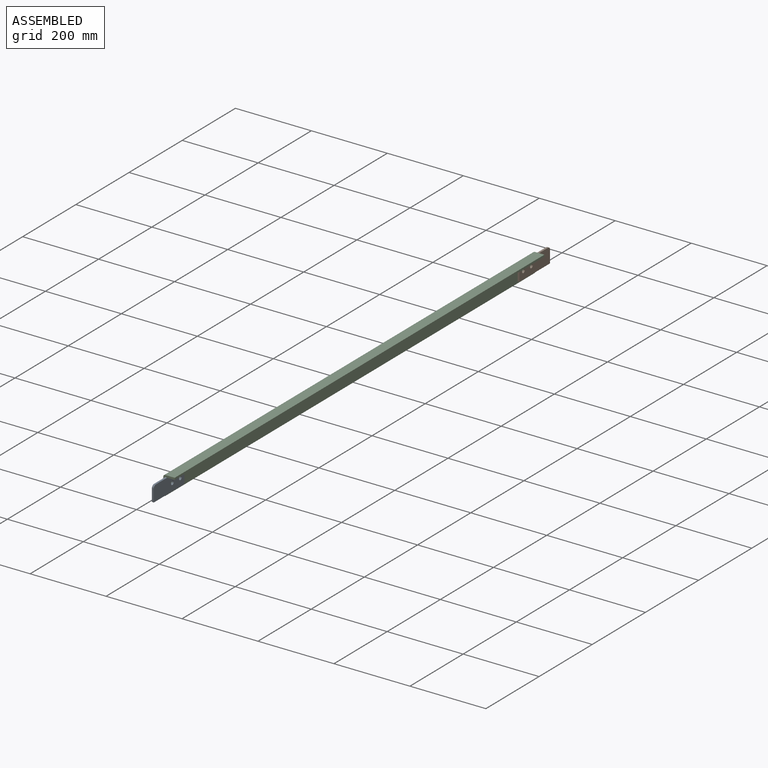
[diagram: assembled view]
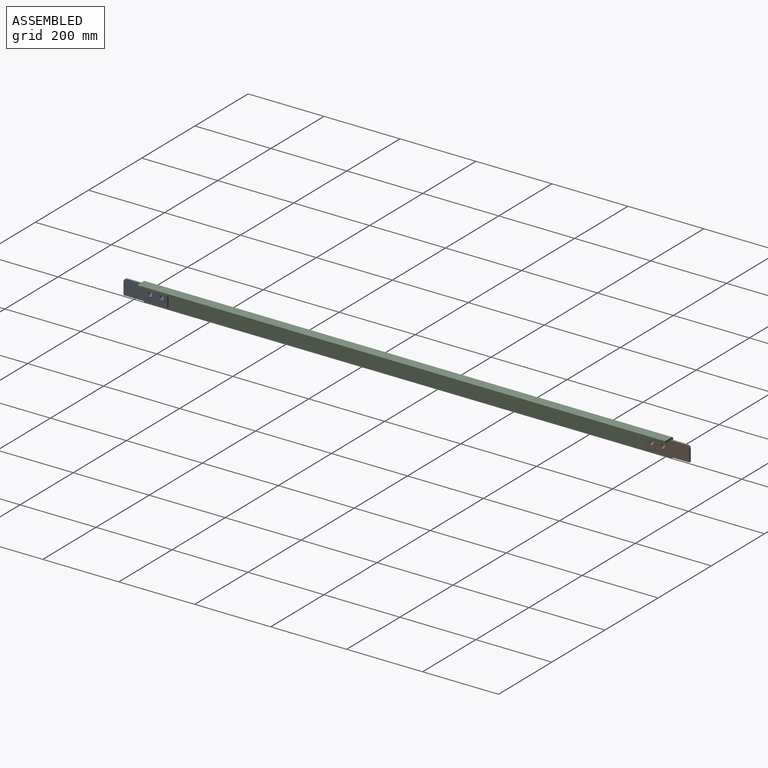
[diagram: assembled view, second angle]
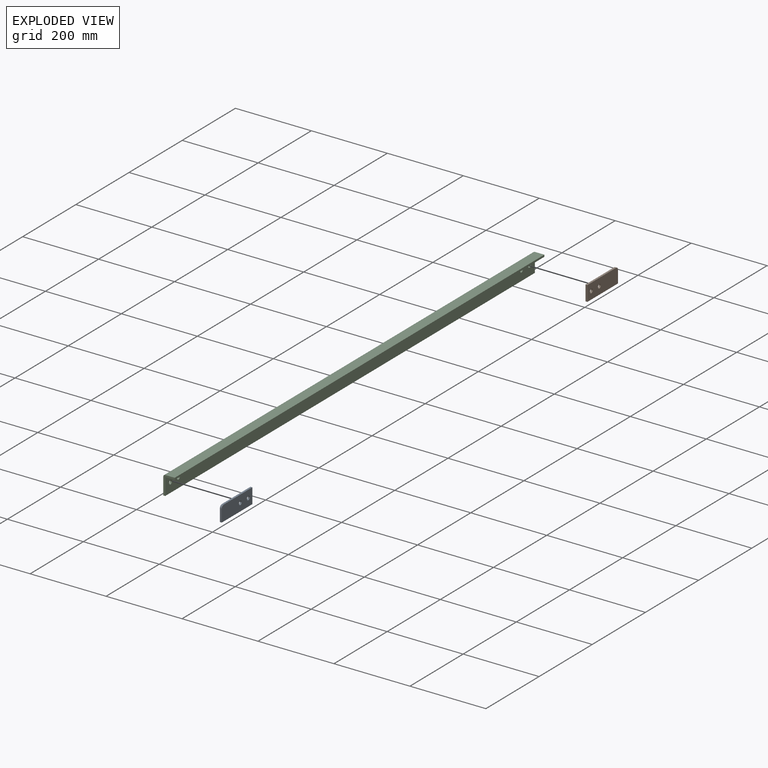
[diagram: exploded view]
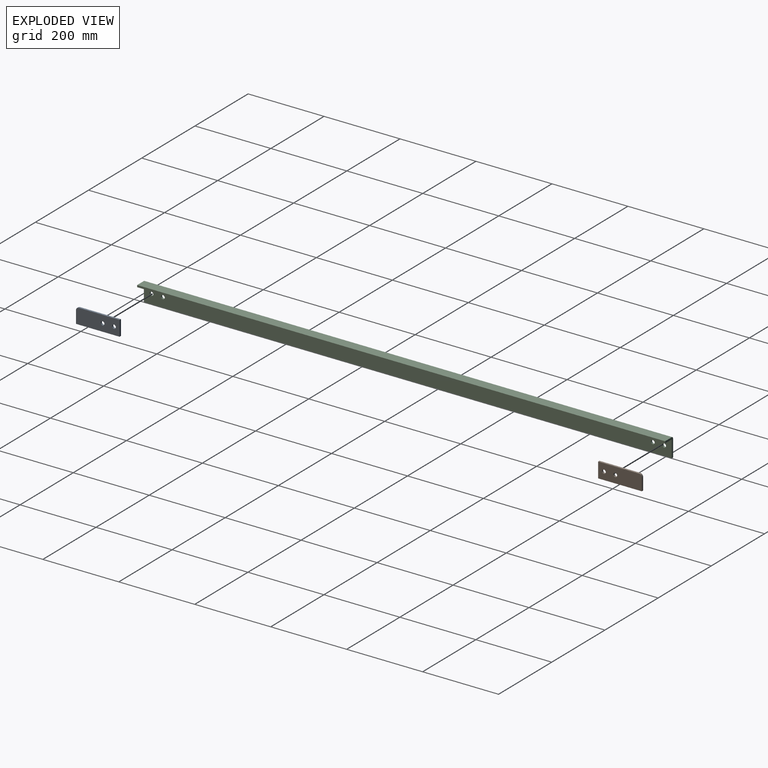
[diagram: exploded view, second angle]
ASSEMBLY  parts=3 mates=7
PART A: 9 faces, bbox 115x5x40 mm
  f0: plane 115x5mm, normal (0,0,-1), area 575mm2, adj f1,f6,f7,f8
  f1: plane 40x5mm, normal (1,0,0), area 200mm2, adj f0,f2,f7,f8
  f2: plane 107.5x5mm, normal (0,0,1), area 537.5mm2, adj f1,f3,f7,f8
  f3: cylinder r=7.5mm len=7.5mm, axis (0,1,0), area 58.9mm2, adj f2,f6,f7,f8
  f4: cylinder r=5mm len=10mm, axis (0,1,0), area 157.1mm2, adj f7,f8
  f5: cylinder r=5mm len=10mm, axis (0,1,0), area 157.1mm2, adj f7,f8
  f6: plane 32.5x5mm, normal (-1,0,0), area 162.5mm2, adj f0,f3,f7,f8
  f7: plane 115x40mm, normal (0,-1,0), area 4430.8mm2, adj f0,f1,f2,f3,f4,f5,f6
  f8: plane 115x40mm, normal (0,1,0), area 4430.8mm2, adj f0,f1,f2,f3,f4,f5,f6
PART B: same geometry as A
PART C: 14 faces, bbox 30x1390x50 mm
  f0: plane 1390x45mm, normal (-1,0,0), area 62235.8mm2, adj f1,f7,f8,f9,f10,f11,f12,f13
  f1: plane 1390x5mm, normal (0,0,-1), area 6950mm2, adj f0,f2,f8,f9
  f2: plane 1390x43.5mm, normal (1,0,0), area 60150.8mm2, adj f1,f3,f8,f9,f10,f11,f12,f13
  f3: cylinder r=1.5mm len=1390mm, axis (0,1,0), area 3275.1mm2, adj f2,f4,f8,f9
  f4: plane 1390x23.5mm, normal (0,0,-1), area 32665mm2, adj f3,f5,f8,f9
  f5: plane 1390x5mm, normal (1,0,0), area 6950mm2, adj f4,f6,f8,f9
  f6: plane 1390x25mm, normal (0,0,1), area 34750mm2, adj f5,f7,f8,f9
  f7: cylinder r=5mm len=1390mm, axis (0,1,0), area 10917mm2, adj f0,f6,f8,f9
  f8: plane 50x30mm, normal (0,-1,0), area 370.1mm2, adj f0,f1,f2,f3,f4,f5,f6,f7
  f9: plane 50x30mm, normal (0,1,0), area 370.1mm2, adj f0,f1,f2,f3,f4,f5,f6,f7
  f10: cylinder r=5mm len=10mm, axis (-1,0,0), area 157.1mm2, adj f0,f2
  f11: cylinder r=5mm len=10mm, axis (-1,0,0), area 157.1mm2, adj f0,f2
  f12: cylinder r=5mm len=10mm, axis (-1,0,0), area 157.1mm2, adj f0,f2
  f13: cylinder r=5mm len=10mm, axis (-1,0,0), area 157.1mm2, adj f0,f2
PLACE A rot(axis=(0,0,1),90deg) t=(38.63,-1397.16,-58.78)mm
PLACE B rot(axis=(0,0,-1),90deg) t=(43.63,92.84,-58.78)mm
PLACE C t=(33.63,42.84,-63.78)mm
MATE planar A.f8 <-> C.f2  axis (-1,0,0) through (38.63,-1397.16,-42.53)mm
MATE slider C.f12 <-> A.f4  axis (-1,0,0) through (33.63,-1297.16,-38.78)mm
MATE cylindrical A.f4 <-> C.f12  axis (1,0,0) through (43.63,-1297.16,-38.78)mm
MATE cylindrical C.f10 <-> B.f4  axis (-1,0,0) through (33.63,-7.16,-38.78)mm
MATE cylindrical A.f5 <-> C.f11  axis (1,0,0) through (43.63,-1327.16,-38.78)mm
MATE cylindrical B.f5 <-> C.f13  axis (-1,0,0) through (38.63,22.84,-38.78)mm
MATE planar B.f7 <-> C.f2  axis (-1,0,0) through (38.63,36.16,-38.83)mm
